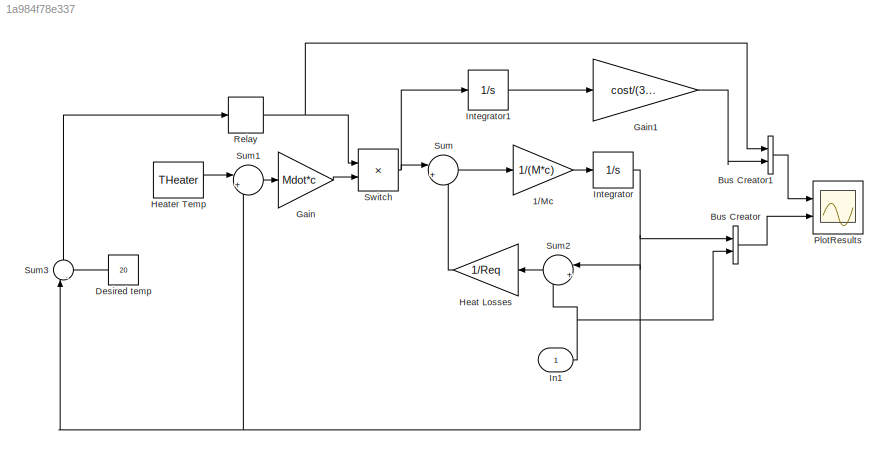
MODEL slx_1a984f78e337
KIND model
CONFIG AbsTol = auto
CONFIG FixedStep = auto
CONFIG MaxStep = auto
CONFIG MinStep = auto
CONFIG PreLoadFcn = assign7new
CONFIG RelTol = 1e-3
CONFIG SampleTimeConstraint = Unconstrained
CONFIG Solver = ode45
CONFIG SolverMode = Auto
CONFIG SolverName = ode45
CONFIG StartTime = 0.0
CONFIG StopTime = 168
BLOCK [Gain] 1//Mc 
  Gain = 1/(M*c)
  OutDataTypeStr = Inherit: Inherit via internal rule
  ParamDataTypeStr = Inherit: Inherit via internal rule
  SaturateOnIntegerOverflow = off
BLOCK [BusCreator] Bus Creator
  DisplayOption = bar
  Inputs = 2
  Ports = [2, 1]
BLOCK [BusCreator] Bus Creator1
  DisplayOption = bar
  Inputs = 2
  Ports = [2, 1]
BLOCK [Constant] Desired temp
  Value = 20
BLOCK [Gain] Gain
  Gain = Mdot*c
  OutDataTypeStr = Inherit: Inherit via internal rule
  ParamDataTypeStr = Inherit: Inherit via internal rule
  SaturateOnIntegerOverflow = off
BLOCK [Gain] Gain1
  Gain = cost/(3600*1000)
  OutDataTypeStr = Inherit: Inherit via internal rule
  ParamDataTypeStr = Inherit: Inherit via internal rule
  SaturateOnIntegerOverflow = off
BLOCK [Gain] Heat Losses
  Gain = 1/Req
  OutDataTypeStr = Inherit: Inherit via internal rule
  ParamDataTypeStr = Inherit: Inherit via internal rule
  SaturateOnIntegerOverflow = off
BLOCK [Constant] Heater Temp 
  Value = THeater
BLOCK [Inport] In1
  IconDisplay = Port number
BLOCK [Integrator] Integrator
  InitialCondition = TinIC
  Ports = [1, 1]
BLOCK [Integrator] Integrator1
  Ports = [1, 1]
BLOCK [Scope] PlotResults
  Floating = off
  LimitDataPoints = off
  NumInputPorts = 2
  Ports = [2]
  SampleTime = 0
  SaveName = a
  TimeRange = 50
  YMax = 2~9.75
  YMin = 0.2~9.58
BLOCK [Relay] Relay
  InputProcessing = Elements as channels (sample based)
  OffSwitchValue = -1.5
  OnSwitchValue = 1.5
BLOCK [Sum] Sum
  IconShape = round
  InputSameDT = off
  Inputs = |+-
  OutDataTypeStr = Inherit: Inherit via internal rule
  Ports = [2, 1]
  SaturateOnIntegerOverflow = off
BLOCK [Sum] Sum1
  IconShape = round
  InputSameDT = off
  Inputs = |+-
  OutDataTypeStr = Inherit: Inherit via internal rule
  Ports = [2, 1]
  SaturateOnIntegerOverflow = off
BLOCK [Sum] Sum2
  IconShape = round
  InputSameDT = off
  Inputs = |+-
  OutDataTypeStr = Inherit: Inherit via internal rule
  Ports = [2, 1]
  SaturateOnIntegerOverflow = off
BLOCK [Sum] Sum3
  IconShape = round
  InputSameDT = off
  Inputs = |-+
  OutDataTypeStr = Inherit: Inherit via internal rule
  Ports = [2, 1]
  SaturateOnIntegerOverflow = off
BLOCK [Product] Switch
  InputSameDT = off
  OutDataTypeStr = Inherit: Inherit via internal rule
  Ports = [2, 1]
  RndMeth = Floor
  SaturateOnIntegerOverflow = off
LINE 1//Mc :1 -> Integrator:1
LINE Bus Creator1:1 -> PlotResults:1
LINE Bus Creator:1 -> PlotResults:2
LINE Desired temp:1 -> Sum3:2
LINE Gain1:1 -> Bus Creator1:2
LINE Gain:1 -> Switch:2
LINE Heat Losses:1 -> Sum:2
LINE Heater Temp :1 -> Sum1:1
NET In1:1 -> Bus Creator:2, Sum2:2
LINE Integrator1:1 -> Gain1:1
NET Integrator:1 -> Bus Creator:1, Sum1:2, Sum2:1, Sum3:1
NET Relay:1 -> Bus Creator1:1, Switch:1
LINE Sum1:1 -> Gain:1
LINE Sum2:1 -> Heat Losses:1
LINE Sum3:1 -> Relay:1
LINE Sum:1 -> 1//Mc :1
NET Switch:1 -> Integrator1:1, Sum:1
note: NET lines group one-source signal fan-out (src -> all destinations, sorted); 1:1 wires keep LINE
